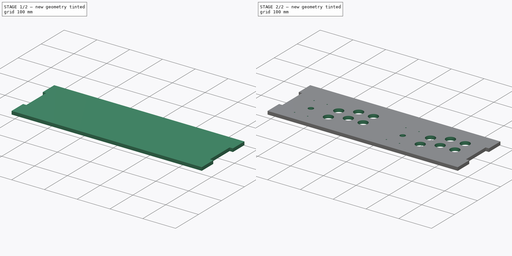
[diagram: build sequence overview — one tinted view per stage of 2, left to right]
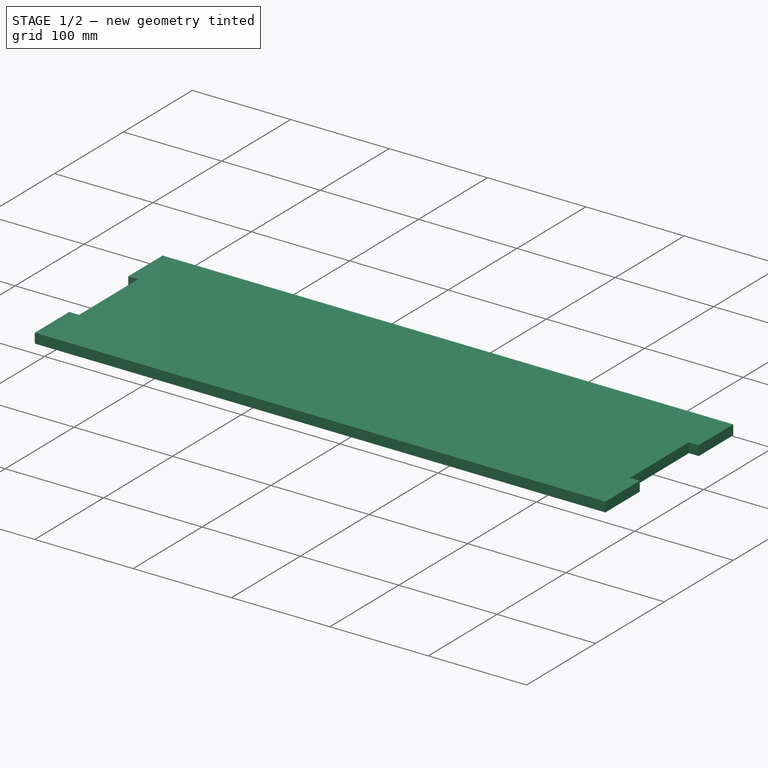
[diagram: stage 1 of 2 — iso view after this stage's code; geometry added in this stage tinted green]
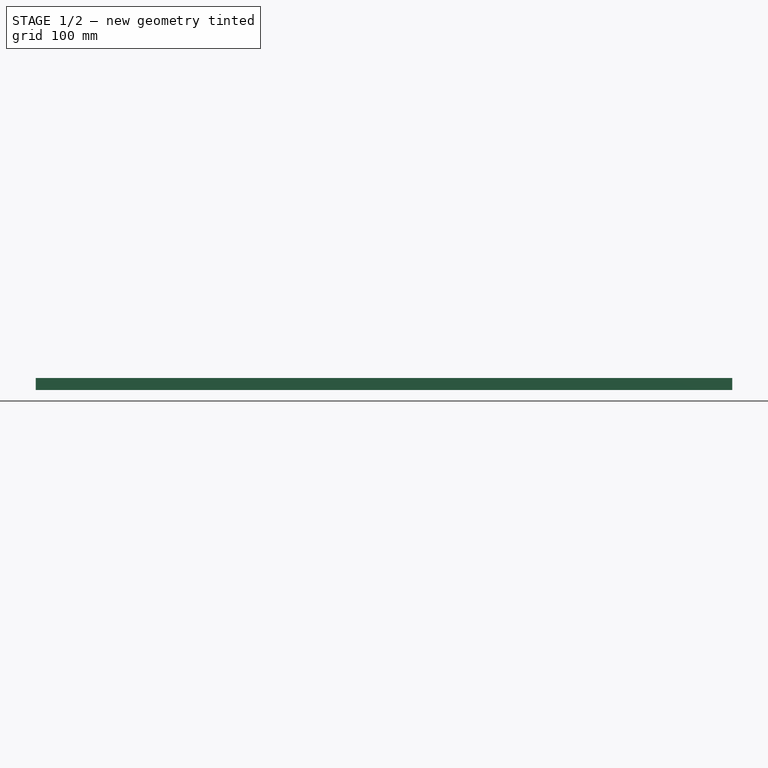
[diagram: stage 1 of 2 — front view after this stage's code; geometry added in this stage tinted green]
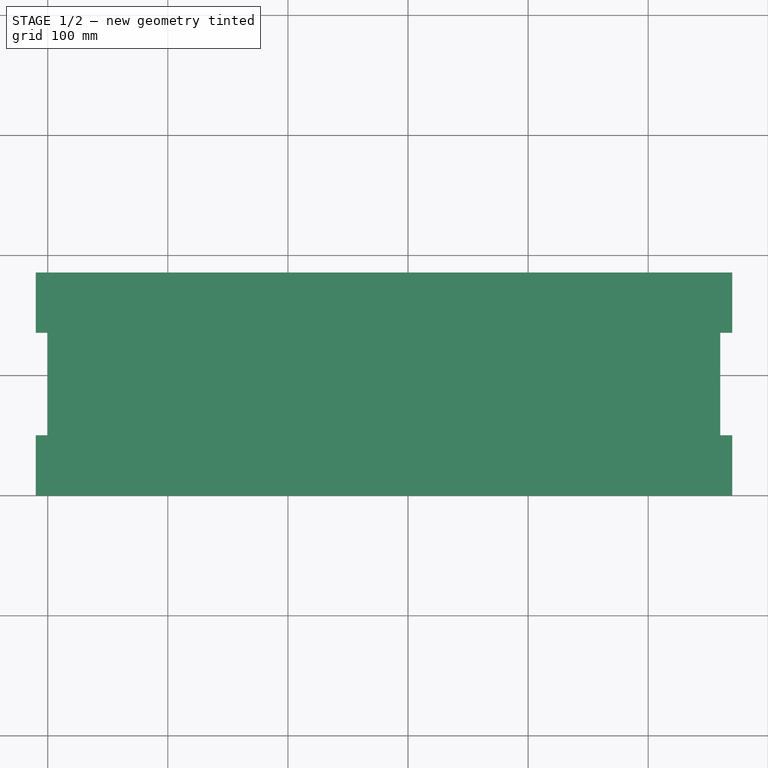
[diagram: stage 1 of 2 — top view after this stage's code; geometry added in this stage tinted green]
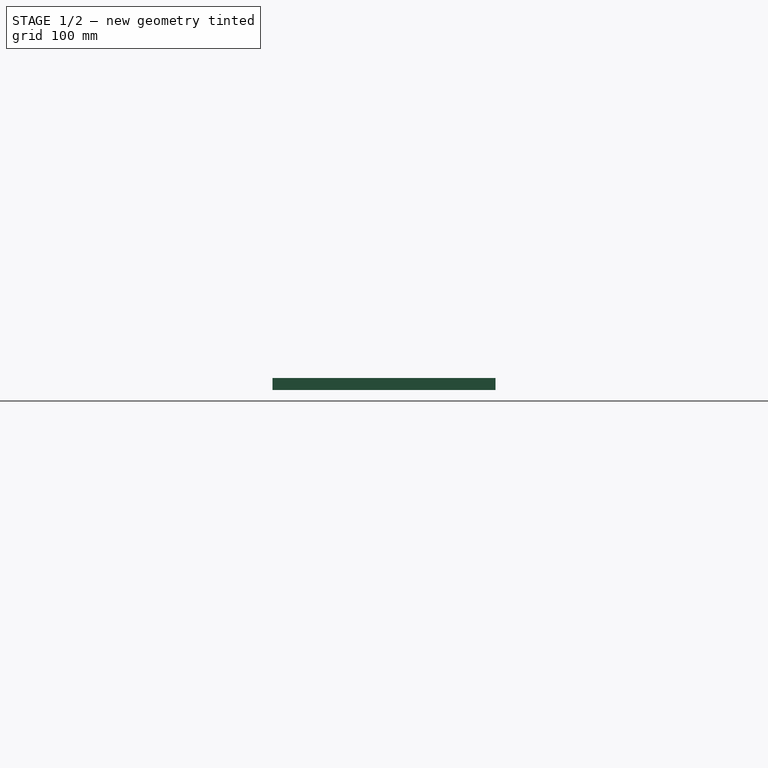
[diagram: stage 1 of 2 — right view after this stage's code; geometry added in this stage tinted green]
FCSTD DOCUMENT  (FreeCAD 0.16R6706 (Git))
Label: panneau_controle
License: All rights reserved
LicenseURL: http://en.wikipedia.org/wiki/All_rights_reserved
objects: Sketcher::SketchObject×2, PartDesign::Pad×1, PartDesign::Pocket×1
note: 6 computed .brp shape members not serialized (recipe doc carries the construction recipe); baked Part::Feature solids carry a one-line shape summary decoded from their .brp

FEATURE [Sketcher::SketchObject] Sketch
  sketch-geometry (16):
    g0: LineSegment StartX=0 StartY=0 StartZ=0 EndX=560 EndY=0 EndZ=0
    g1: LineSegment StartX=560 StartY=185.6 StartZ=0 EndX=0 EndY=185.6 EndZ=0
    g2: LineSegment StartX=560 StartY=185.6 StartZ=0 EndX=570 EndY=185.6 EndZ=0
    g3: LineSegment StartX=570 StartY=185.6 StartZ=0 EndX=570 EndY=135.6 EndZ=0
    g4: LineSegment StartX=570 StartY=135.6 StartZ=0 EndX=560 EndY=135.6 EndZ=0
    g5: LineSegment StartX=560 StartY=50 StartZ=0 EndX=570 EndY=50 EndZ=0
    g6: LineSegment StartX=570 StartY=50 StartZ=0 EndX=570 EndY=0 EndZ=0
    g7: LineSegment StartX=570 StartY=0 StartZ=0 EndX=560 EndY=0 EndZ=0
    g8: LineSegment StartX=0 StartY=185.6 StartZ=0 EndX=-10 EndY=185.6 EndZ=0
    g9: LineSegment StartX=-10 StartY=185.6 StartZ=0 EndX=-10 EndY=135.6 EndZ=0
    g10: LineSegment StartX=-10 StartY=135.6 StartZ=0 EndX=0 EndY=135.6 EndZ=0
    g11: LineSegment StartX=0 StartY=50 StartZ=0 EndX=-10 EndY=50 EndZ=0
    g12: LineSegment StartX=-10 StartY=50 StartZ=0 EndX=-10 EndY=0 EndZ=0
    g13: LineSegment StartX=-10 StartY=0 StartZ=0 EndX=0 EndY=0 EndZ=0
    g14: LineSegment StartX=0 StartY=135.6 StartZ=0 EndX=0 EndY=50 EndZ=0
    g15: LineSegment StartX=560 StartY=135.6 StartZ=0 EndX=560 EndY=50 EndZ=0
  constraints (47):
    c: Horizontal(g0)
    c: Horizontal(g1)
    c: Coincident(g0,g-1)
    c: Distance(g0) = 560
    c: Coincident(g2,g3)
    c: Coincident(g3,g4)
    c: Horizontal(g2)
    c: Horizontal(g4)
    c: Vertical(g3)
    c: Coincident(g5,g6)
    c: Coincident(g6,g7)
    c: Horizontal(g5)
    c: Horizontal(g7)
    c: Vertical(g6)
    c: Coincident(g8,g9)
    c: Coincident(g9,g10)
    c: Horizontal(g8)
    c: Horizontal(g10)
    c: Vertical(g9)
    c: Coincident(g11,g12)
    c: Coincident(g12,g13)
    c: Horizontal(g11)
    c: Horizontal(g13)
    c: Vertical(g12)
    c: Equal(g8,g10)
    c: Equal(g10,g11)
    c: Equal(g11,g13)
    c: Equal(g13,g7)
    c: Equal(g7,g5)
    c: Equal(g5,g4)
    c: Equal(g4,g2)
    c: Equal(g9,g12)
    c: Equal(g12,g3)
    c: Equal(g3,g6)
    c: Distance(g2) = 10
    c: Distance(g3) = 50
    c: DistanceY(g-1,g1) = 185.6
    c: Coincident(g8,g1)
    c: Coincident(g13,g-1)
    c: Coincident(g2,g1)
    c: Coincident(g0,g7)
    c: Coincident(g14,g10)
    c: Coincident(g14,g11)
    c: Vertical(g14)
    c: Coincident(g15,g4)
    c: Coincident(g15,g5)
    c: Vertical(g15)
FEATURE [PartDesign::Pad] Pad
  Length = 10
  Length2 = 100
  Sketch = -> Sketch
  Type = 0
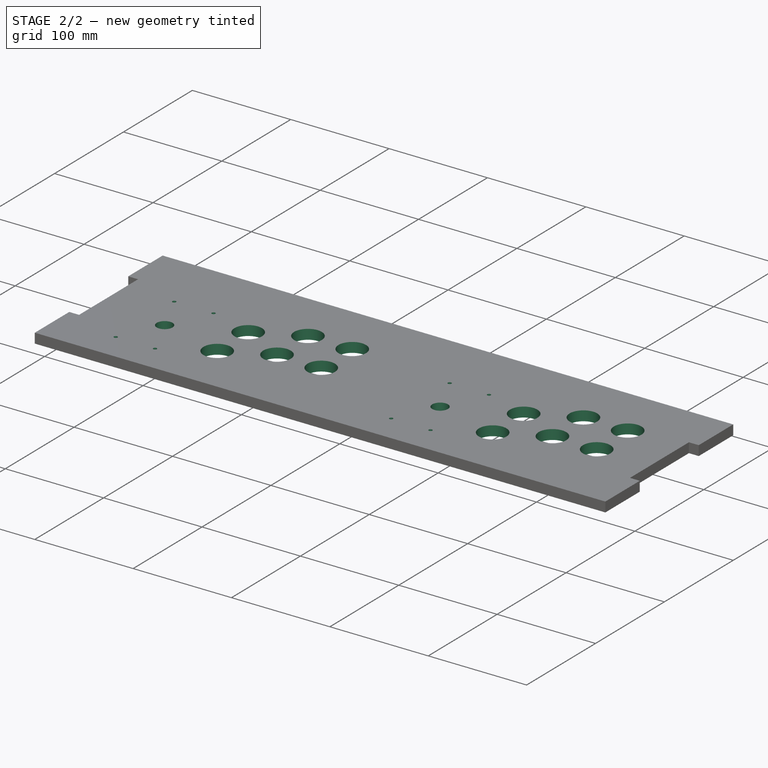
[diagram: stage 2 of 2 — iso view after this stage's code; geometry added in this stage tinted green]
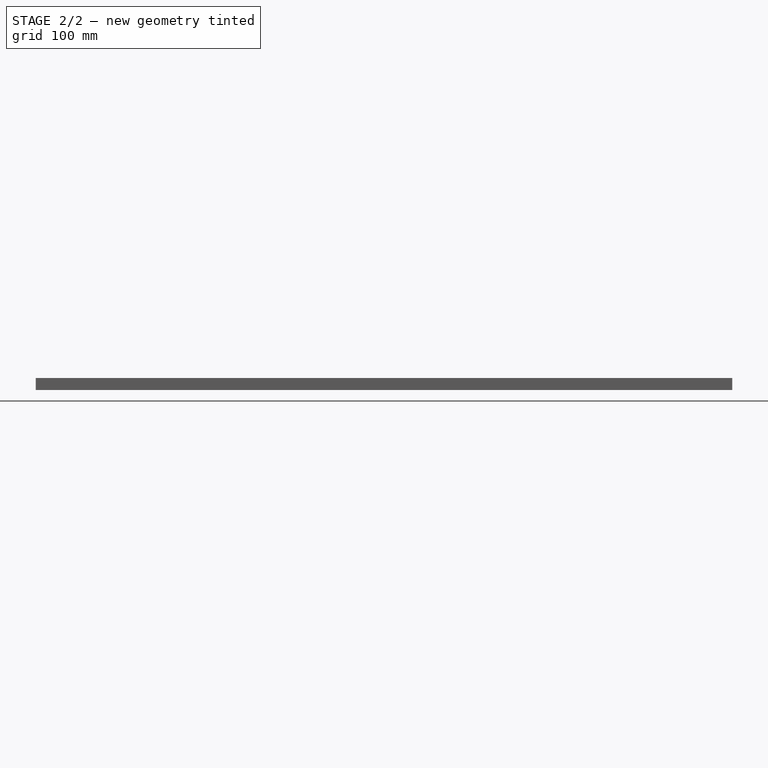
[diagram: stage 2 of 2 — front view after this stage's code; geometry added in this stage tinted green]
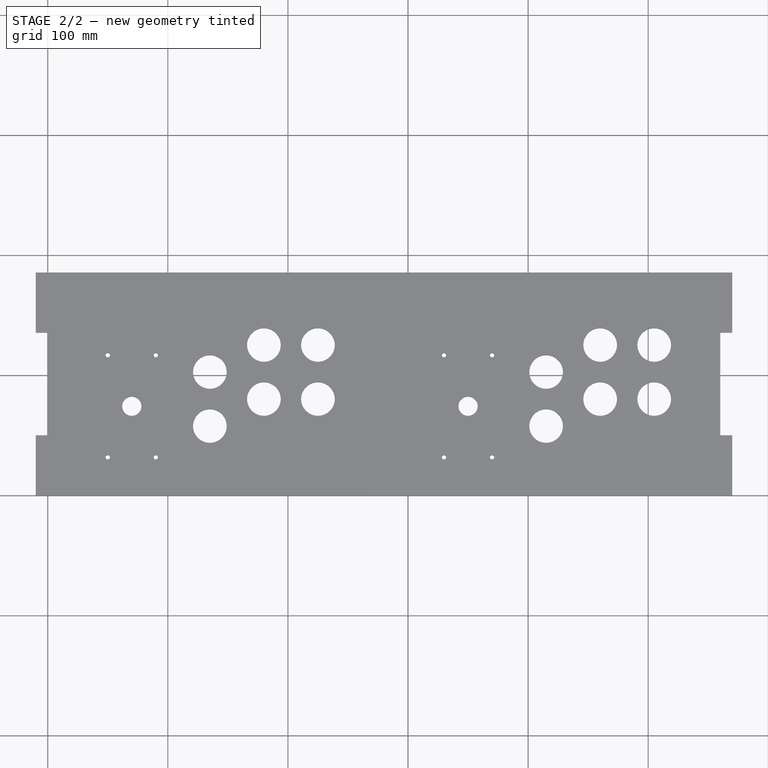
[diagram: stage 2 of 2 — top view after this stage's code; geometry added in this stage tinted green]
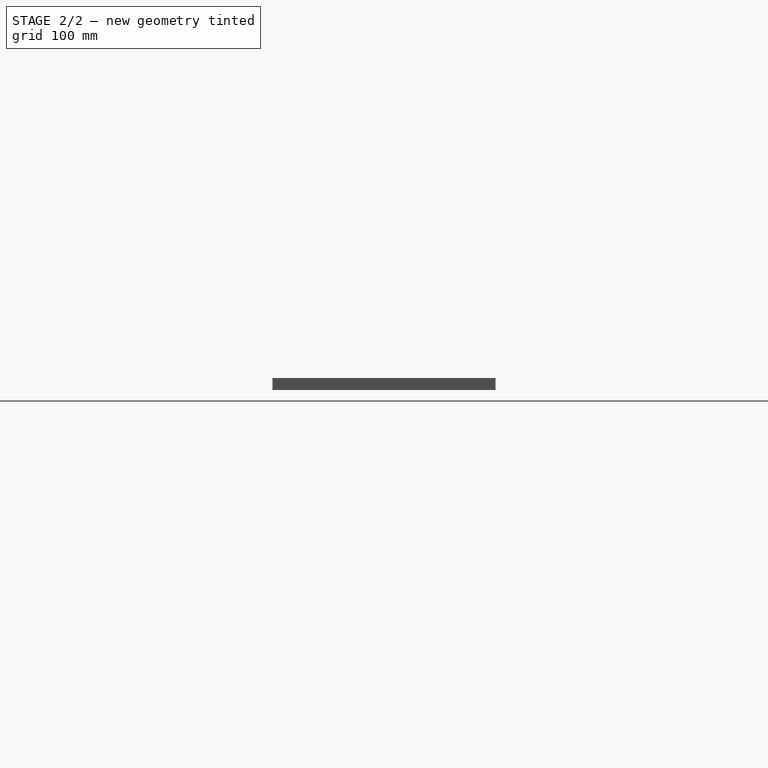
[diagram: stage 2 of 2 — right view after this stage's code; geometry added in this stage tinted green]
FEATURE [Sketcher::SketchObject] Sketch001
  ExternalGeometry = -> [Pad]
  Placement = pos=(0,0,10) rot=(0,0,1;0rad)
  Support = -> Pad [Face18]
  sketch-geometry (45):
    g0: Circle CenterX=70 CenterY=74.24 CenterZ=0 NormalX=0 NormalY=0 NormalZ=1 Radius=8
    g1: Circle CenterX=135 CenterY=102.76 CenterZ=0 NormalX=0 NormalY=0 NormalZ=1 Radius=14
    g2: Circle CenterX=180 CenterY=125.26 CenterZ=0 NormalX=0 NormalY=0 NormalZ=1 Radius=14
    g3: Circle CenterX=225 CenterY=125.26 CenterZ=0 NormalX=0 NormalY=0 NormalZ=1 Radius=14
    g4: Circle CenterX=135 CenterY=57.76 CenterZ=0 NormalX=0 NormalY=0 NormalZ=1 Radius=14
    g5: Circle CenterX=180 CenterY=80.26 CenterZ=0 NormalX=0 NormalY=0 NormalZ=1 Radius=14
    g6: Circle CenterX=225 CenterY=80.26 CenterZ=0 NormalX=0 NormalY=0 NormalZ=1 Radius=14
    g7: LineSegment [constr] StartX=135 StartY=102.76 StartZ=0 EndX=135 EndY=57.76 EndZ=0
    g8: LineSegment [constr] StartX=180 StartY=125.26 StartZ=0 EndX=180 EndY=80.26 EndZ=0
    g9: LineSegment [constr] StartX=225 StartY=125.26 StartZ=0 EndX=225 EndY=80.26 EndZ=0
    g10: LineSegment [constr] StartX=180 StartY=125.26 StartZ=0 EndX=225 EndY=125.26 EndZ=0
    g11: Circle CenterX=350 CenterY=74.24 CenterZ=0 NormalX=0 NormalY=0 NormalZ=1 Radius=8
    g12: Circle CenterX=415 CenterY=102.76 CenterZ=0 NormalX=0 NormalY=0 NormalZ=1 Radius=14
    g13: Circle CenterX=460 CenterY=125.26 CenterZ=0 NormalX=0 NormalY=0 NormalZ=1 Radius=14
    g14: Circle CenterX=505 CenterY=125.26 CenterZ=0 NormalX=0 NormalY=0 NormalZ=1 Radius=14
    g15: Circle CenterX=505 CenterY=80.26 CenterZ=0 NormalX=0 NormalY=0 NormalZ=1 Radius=14
    g16: Circle CenterX=460 CenterY=80.26 CenterZ=0 NormalX=0 NormalY=0 NormalZ=1 Radius=14
    g17: Circle CenterX=415 CenterY=57.76 CenterZ=0 NormalX=0 NormalY=0 NormalZ=1 Radius=14
    g18: LineSegment [constr] StartX=415 StartY=57.76 StartZ=0 EndX=415 EndY=102.76 EndZ=0
    g19: LineSegment [constr] StartX=460 StartY=125.26 StartZ=0 EndX=460 EndY=80.26 EndZ=0
    g20: LineSegment [constr] StartX=505 StartY=125.26 StartZ=0 EndX=505 EndY=80.26 EndZ=0
    g21: LineSegment [constr] StartX=460 StartY=125.26 StartZ=0 EndX=505 EndY=125.26 EndZ=0
    g22: LineSegment [constr] StartX=70 StartY=74.24 StartZ=0 EndX=135 EndY=102.76 EndZ=0
    g23: LineSegment [constr] StartX=350 StartY=74.24 StartZ=0 EndX=415 EndY=102.76 EndZ=0
    g24: GeomPoint [constr] X=280 Y=0 Z=0
    g25: LineSegment [constr] StartX=50 StartY=116.74 StartZ=0 EndX=90 EndY=116.74 EndZ=0
    g26: LineSegment [constr] StartX=90 StartY=116.74 StartZ=0 EndX=90 EndY=31.74 EndZ=0
    g27: LineSegment [constr] StartX=90 StartY=31.74 StartZ=0 EndX=50 EndY=31.74 EndZ=0
    g28: LineSegment [constr] StartX=50 StartY=31.74 StartZ=0 EndX=50 EndY=116.74 EndZ=0
    g29: LineSegment [constr] StartX=50 StartY=116.74 StartZ=0 EndX=90 EndY=31.74 EndZ=0
    g30: GeomPoint [constr] X=70 Y=74.24 Z=0
    g31: LineSegment [constr] StartX=330 StartY=116.74 StartZ=0 EndX=370 EndY=116.74 EndZ=0
    g32: LineSegment [constr] StartX=370 StartY=116.74 StartZ=0 EndX=370 EndY=31.74 EndZ=0
    g33: LineSegment [constr] StartX=370 StartY=31.74 StartZ=0 EndX=330 EndY=31.74 EndZ=0
    g34: LineSegment [constr] StartX=330 StartY=31.74 StartZ=0 EndX=330 EndY=116.74 EndZ=0
    g35: LineSegment [constr] StartX=330 StartY=116.74 StartZ=0 EndX=370 EndY=31.74 EndZ=0
    g36: GeomPoint [constr] X=350 Y=74.24 Z=0
    g37: Circle CenterX=50 CenterY=116.74 CenterZ=0 NormalX=0 NormalY=0 NormalZ=1 Radius=1.8
    g38: Circle CenterX=90 CenterY=116.74 CenterZ=0 NormalX=0 NormalY=0 NormalZ=1 Radius=1.8
    g39: Circle CenterX=50 CenterY=31.74 CenterZ=0 NormalX=0 NormalY=0 NormalZ=1 Radius=1.8
    g40: Circle CenterX=90 CenterY=31.74 CenterZ=0 NormalX=0 NormalY=0 NormalZ=1 Radius=1.8
    g41: Circle CenterX=330 CenterY=116.74 CenterZ=0 NormalX=0 NormalY=0 NormalZ=1 Radius=1.8
    g42: Circle CenterX=370 CenterY=116.74 CenterZ=0 NormalX=0 NormalY=0 NormalZ=1 Radius=1.8
    g43: Circle CenterX=370 CenterY=31.74 CenterZ=0 NormalX=0 NormalY=0 NormalZ=1 Radius=1.8
    g44: Circle CenterX=330 CenterY=31.74 CenterZ=0 NormalX=0 NormalY=0 NormalZ=1 Radius=1.8
  constraints (110):
    c: Radius(g0) = 8
    c: DistanceY(g-1,g0) = 74.24
    c: DistanceX(g-1,g0) = 70
    c: DistanceX(g0,g1) = 65
    c: DistanceX(g1,g2) = 45
    c: DistanceX(g2,g3) = 45
    c: Equal(g4,g1)
    c: Equal(g1,g2)
    c: Equal(g2,g5)
    c: Equal(g5,g6)
    c: Equal(g6,g3)
    c: Radius(g4) = 14
    c: Coincident(g7,g1)
    c: Coincident(g7,g4)
    c: Coincident(g8,g2)
    c: Coincident(g8,g5)
    c: Coincident(g9,g3)
    c: Coincident(g9,g6)
    c: Vertical(g9)
    c: Vertical(g8)
    c: Vertical(g7)
    c: Distance(g9) = 45
    c: Equal(g9,g8)
    c: Equal(g8,g7)
    c: Coincident(g10,g2)
    c: Coincident(g10,g3)
    c: Horizontal(g10)
    c: DistanceY(g1,g2) = 22.5
    c: DistanceY(g0,g1) = 28.52
    c: Coincident(g18,g17)
    c: Coincident(g18,g12)
    c: Coincident(g19,g13)
    c: Coincident(g19,g16)
    c: Coincident(g20,g14)
    c: Coincident(g20,g15)
    c: Vertical(g18)
    c: Vertical(g19)
    c: Vertical(g20)
    c: Equal(g20,g19)
    c: Equal(g19,g18)
    c: Equal(g18,g9)
    c: Coincident(g21,g13)
    c: Coincident(g21,g14)
    c: Horizontal(g21)
    c: Equal(g21,g10)
    c: Equal(g12,g17)
    c: Equal(g17,g16)
    c: Equal(g16,g13)
    c: Equal(g13,g15)
    c: Equal(g15,g14)
    c: Equal(g14,g3)
    c: Equal(g11,g0)
    c: DistanceX(g11,g12) = 65
    c: DistanceX(g17,g16) = 45
    c: DistanceY(g12,g13) = 22.5
    c: Coincident(g22,g0)
    c: Coincident(g22,g1)
    c: Coincident(g23,g11)
    c: Coincident(g23,g12)
    c: Equal(g23,g22)
    c: PointOnObject(g24,g-1)
    c: DistanceX(g-1,g24) = 280
    c: DistanceY(g24,g11) = 74.24
    c: DistanceX(g24,g11) = 70
    c: Coincident(g25,g26)
    c: Coincident(g26,g27)
    c: Coincident(g27,g28)
    c: Coincident(g28,g25)
    c: Horizontal(g25)
    c: Horizontal(g27)
    c: Vertical(g26)
    c: Vertical(g28)
    c: Distance(g27) = 40
    c: Distance(g28) = 85
    c: Coincident(g29,g25)
    c: Coincident(g29,g26)
    c: PointOnObject(g30,g29)
    c: Symmetric(g29,g29,g30)
    c: Coincident(g30,g0)
    c: Coincident(g31,g32)
    c: Coincident(g32,g33)
    c: Coincident(g33,g34)
    c: Coincident(g34,g31)
    c: Horizontal(g31)
    c: Horizontal(g33)
    c: Vertical(g32)
    c: Vertical(g34)
    c: Coincident(g35,g31)
    c: Coincident(g35,g32)
    c: PointOnObject(g36,g35)
    c: Symmetric(g35,g35,g36)
    c: Equal(g25,g31)
    c: Equal(g32,g26)
    c: Coincident(g36,g11)
    c: Coincident(g37,g25)
    c: Coincident(g38,g25)
    c: Coincident(g39,g27)
    c: Coincident(g40,g26)
    c: Coincident(g41,g31)
    c: Coincident(g42,g31)
    c: Coincident(g43,g32)
    c: Coincident(g44,g33)
    c: Equal(g44,g43)
    c: Equal(g43,g42)
    c: Equal(g42,g41)
    c: Equal(g41,g40)
    c: Equal(g40,g38)
    c: Equal(g38,g37)
    c: Equal(g37,g39)
    c: Radius(g37) = 1.8
FEATURE [PartDesign::Pocket] Pocket
  Length = 5
  Sketch = -> Sketch001
  Type = 1
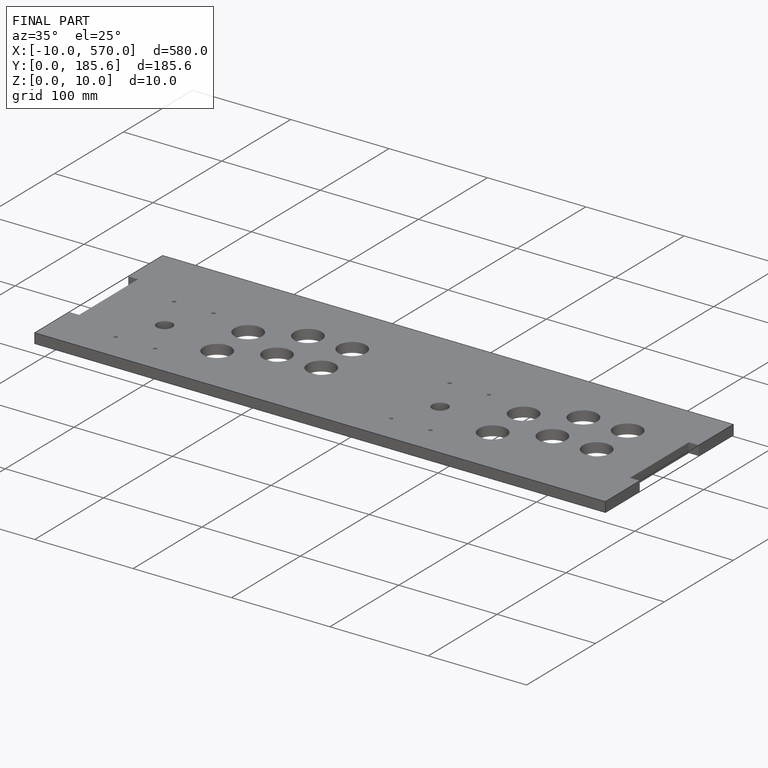
[diagram: finished part — iso view with bounding-box wireframe]
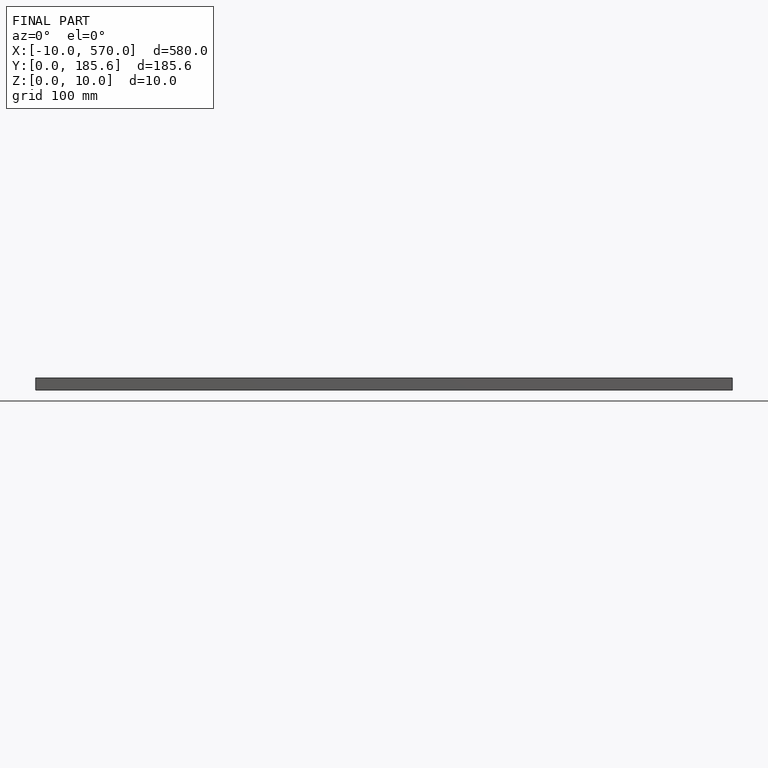
[diagram: finished part — front view with bounding-box wireframe]
